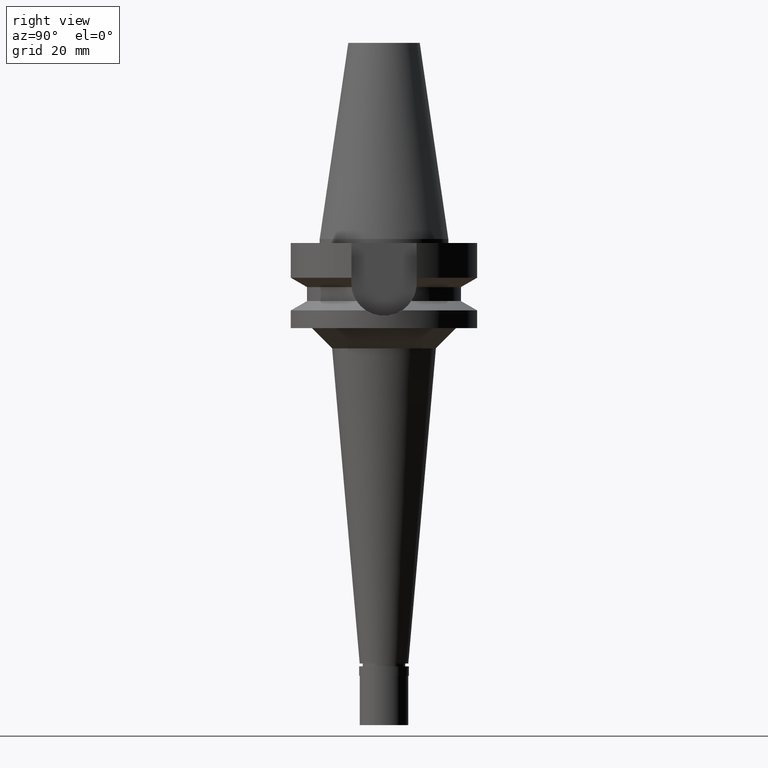
[diagram: clean part render]
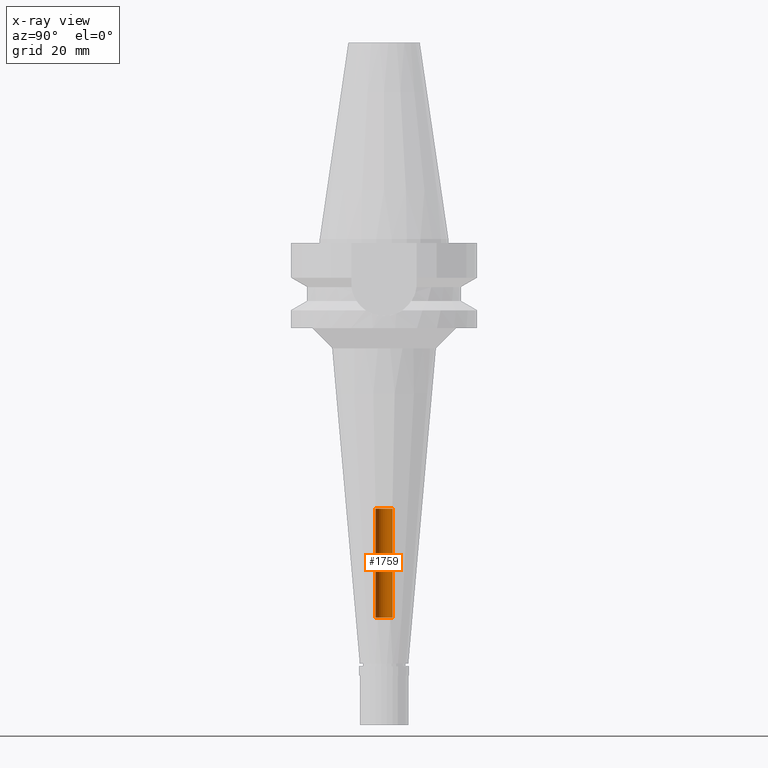
[diagram: x-ray — body ghosted, one internal face saturated and labeled with its STEP entity id]
A machine part, right view, then the same camera in x-ray: the body is ghosted and one INTERNAL B-rep face — a face not visible from any outside direction — is saturated and labeled: STEP entity #1759.
In plain terms, the highlighted cylindrical surface (edge-blend (fillet) strip) has radius 2.1 mm, axis along (0, 0, -1).
Its self-contained STEP definition (entity closure, byte-faithful):
#128 = VECTOR ( 'NONE', #1705, 1000.000000000000000 ) ;
#175 = EDGE_CURVE ( 'NONE', #2038, #270, #1182, .T. ) ;
#270 = VERTEX_POINT ( 'NONE', #2388 ) ;
#436 = CARTESIAN_POINT ( 'NONE',  ( 0.0000000000000000000, 2.100000000000000089, -66.60000000000000853 ) ) ;
#454 = VERTEX_POINT ( 'NONE', #2381 ) ;
#462 = AXIS2_PLACEMENT_3D ( 'NONE', #2610, #1484, #2552 ) ;
#522 = CARTESIAN_POINT ( 'NONE',  ( 0.0000000000000000000, 1.918041816824999936E-14, -93.50000000000000000 ) ) ;
#531 = DIRECTION ( 'NONE',  ( 0.0000000000000000000, 0.0000000000000000000, 1.000000000000000000 ) ) ;
#727 = CARTESIAN_POINT ( 'NONE',  ( 0.0000000000000000000, 2.100000000000000089, -93.50000000000000000 ) ) ;
#767 = FACE_OUTER_BOUND ( 'NONE', #2140, .T. ) ;
#802 = CARTESIAN_POINT ( 'NONE',  ( 0.0000000000000000000, 1.918041816824999936E-14, 56.61999999999999744 ) ) ;
#1016 = CIRCLE ( 'NONE', #2688, 2.100000000000000089 ) ;
#1116 = VERTEX_POINT ( 'NONE', #1208 ) ;
#1128 = EDGE_CURVE ( 'NONE', #1116, #2038, #2787, .T. ) ;
#1182 = CIRCLE ( 'NONE', #462, 2.100000000000000089 ) ;
#1208 = CARTESIAN_POINT ( 'NONE',  ( 0.0000000000000000000, 2.100000000000000089, -93.50000000000000000 ) ) ;
#1243 = ORIENTED_EDGE ( 'NONE', *, *, #2354, .T. ) ;
#1452 = DIRECTION ( 'NONE',  ( 0.0000000000000000000, 0.0000000000000000000, -1.000000000000000000 ) ) ;
#1484 = DIRECTION ( 'NONE',  ( 0.0000000000000000000, 0.0000000000000000000, 1.000000000000000000 ) ) ;
#1691 = DIRECTION ( 'NONE',  ( 0.0000000000000000000, -1.000000000000000000, 0.0000000000000000000 ) ) ;
#1705 = DIRECTION ( 'NONE',  ( 0.0000000000000000000, 0.0000000000000000000, 1.000000000000000000 ) ) ;
#1752 = EDGE_CURVE ( 'NONE', #454, #270, #2614, .T. ) ;
#1759 = ADVANCED_FACE ( 'NONE', ( #767 ), #2629, .F. ) ;
#1968 = DIRECTION ( 'NONE',  ( 0.0000000000000000000, 0.0000000000000000000, -1.000000000000000000 ) ) ;
#1977 = VECTOR ( 'NONE', #531, 1000.000000000000000 ) ;
#2038 = VERTEX_POINT ( 'NONE', #436 ) ;
#2133 = AXIS2_PLACEMENT_3D ( 'NONE', #802, #1968, #1691 ) ;
#2140 = EDGE_LOOP ( 'NONE', ( #2812, #2861, #1243, #2231 ) ) ;
#2208 = DIRECTION ( 'NONE',  ( 0.0000000000000000000, -1.000000000000000000, 0.0000000000000000000 ) ) ;
#2231 = ORIENTED_EDGE ( 'NONE', *, *, #1128, .T. ) ;
#2354 = EDGE_CURVE ( 'NONE', #454, #1116, #1016, .T. ) ;
#2376 = CARTESIAN_POINT ( 'NONE',  ( 0.0000000000000000000, -2.100000000000000089, -93.50000000000000000 ) ) ;
#2381 = CARTESIAN_POINT ( 'NONE',  ( 0.0000000000000000000, -2.100000000000000089, -93.50000000000000000 ) ) ;
#2388 = CARTESIAN_POINT ( 'NONE',  ( 0.0000000000000000000, -2.100000000000000089, -66.60000000000000853 ) ) ;
#2552 = DIRECTION ( 'NONE',  ( 0.0000000000000000000, 1.000000000000000000, 0.0000000000000000000 ) ) ;
#2610 = CARTESIAN_POINT ( 'NONE',  ( 0.0000000000000000000, 1.918041816824999936E-14, -66.60000000000000853 ) ) ;
#2614 = LINE ( 'NONE', #2376, #128 ) ;
#2629 = CYLINDRICAL_SURFACE ( 'NONE', #2133, 2.100000000000000089 ) ;
#2688 = AXIS2_PLACEMENT_3D ( 'NONE', #522, #1452, #2208 ) ;
#2787 = LINE ( 'NONE', #727, #1977 ) ;
#2812 = ORIENTED_EDGE ( 'NONE', *, *, #175, .T. ) ;
#2861 = ORIENTED_EDGE ( 'NONE', *, *, #1752, .F. ) ;